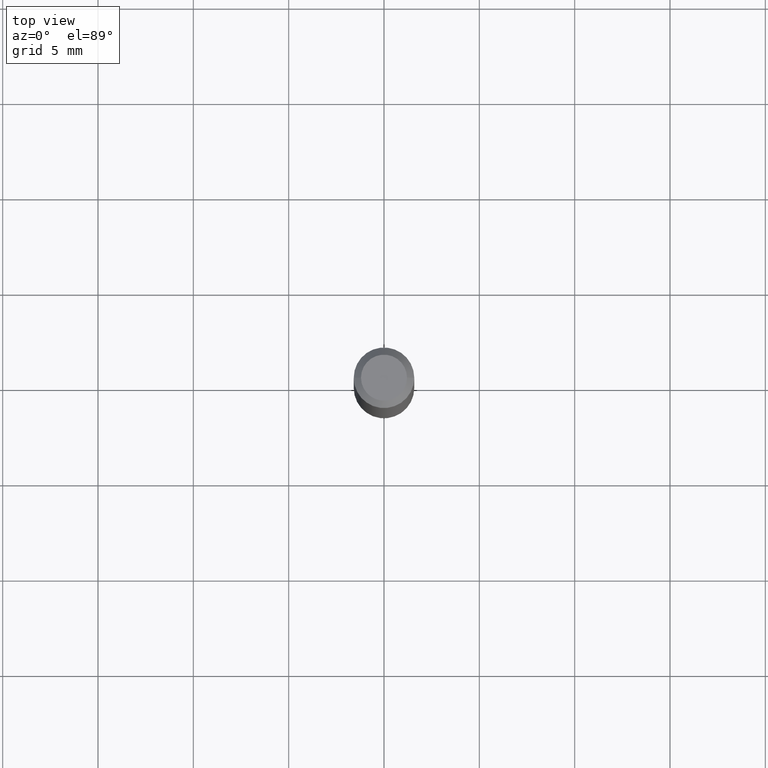
[diagram: clean part render]
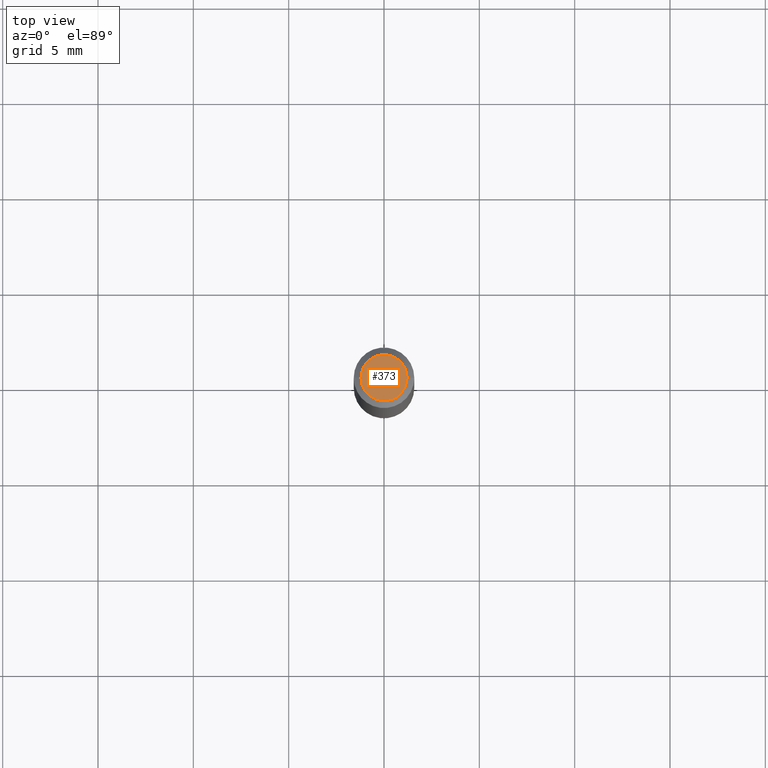
[diagram: same view with one face highlighted and labeled with its STEP entity id]
A machine part, top view. The second image highlights one B-rep face of the part: STEP entity #373.
In plain terms, the highlighted planar face has unit normal (0, -0, -1).
Its self-contained STEP definition (entity closure, byte-faithful):
#10 = ORIENTED_EDGE ( 'NONE', *, *, #319, .T. ) ;
#44 = DIRECTION ( 'NONE',  ( 1.000000000000000000, -6.982962677686267499E-15, 4.852736867747366768E-29 ) ) ;
#61 = DIRECTION ( 'NONE',  ( -1.000000000000000000, 6.982962677686265922E-15, -4.876176775795935793E-29 ) ) ;
#84 = EDGE_CURVE ( 'NONE', #121, #369, #186, .T. ) ;
#87 = CARTESIAN_POINT ( 'NONE',  ( 3.316907271900976096E-16, 0.04749999999999999362, -3.005280802665715689E-17 ) ) ;
#93 = AXIS2_PLACEMENT_3D ( 'NONE', #405, #256, #340 ) ;
#96 = PLANE ( 'NONE',  #163 ) ;
#121 = VERTEX_POINT ( 'NONE', #206 ) ;
#127 = AXIS2_PLACEMENT_3D ( 'NONE', #266, #413, #44 ) ;
#163 = AXIS2_PLACEMENT_3D ( 'NONE', #87, #245, #61 ) ;
#186 = CIRCLE ( 'NONE', #127, 0.04749999999999999362 ) ;
#206 = CARTESIAN_POINT ( 'NONE',  ( -0.04749999999999999362, 3.578768372314215436E-16, 2.715851111367820755E-16 ) ) ;
#222 = EDGE_LOOP ( 'NONE', ( #341, #10 ) ) ;
#235 = CIRCLE ( 'NONE', #93, 0.04749999999999999362 ) ;
#245 = DIRECTION ( 'NONE',  ( 2.438088387897960049E-29, -3.491481338843145188E-15, -1.000000000000000000 ) ) ;
#256 = DIRECTION ( 'NONE',  ( -2.445468806185136597E-29, 3.491481338843145583E-15, 1.000000000000000000 ) ) ;
#266 = CARTESIAN_POINT ( 'NONE',  ( -6.641529175093299695E-45, 9.482343474417248123E-31, 2.715851111367844914E-16 ) ) ;
#319 = EDGE_CURVE ( 'NONE', #369, #121, #235, .T. ) ;
#340 = DIRECTION ( 'NONE',  ( 1.000000000000000000, -6.982962677686267499E-15, 4.852736867747366768E-29 ) ) ;
#341 = ORIENTED_EDGE ( 'NONE', *, *, #84, .T. ) ;
#369 = VERTEX_POINT ( 'NONE', #382 ) ;
#373 = ADVANCED_FACE ( 'NONE', ( #416 ), #96, .F. ) ;
#382 = CARTESIAN_POINT ( 'NONE',  ( 0.04749999999999999362, -4.035134999187573693E-16, 2.715851111367870552E-16 ) ) ;
#405 = CARTESIAN_POINT ( 'NONE',  ( -6.641529175093299695E-45, 9.482343474417248123E-31, 2.715851111367844914E-16 ) ) ;
#413 = DIRECTION ( 'NONE',  ( -2.445468806185136597E-29, 3.491481338843145583E-15, 1.000000000000000000 ) ) ;
#416 = FACE_OUTER_BOUND ( 'NONE', #222, .T. ) ;